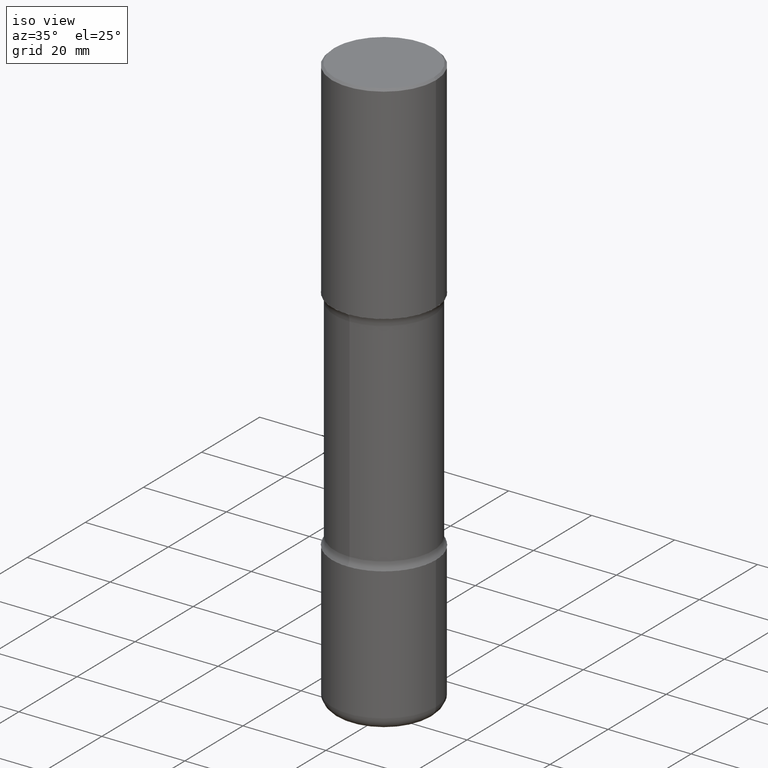
[diagram: clean part render]
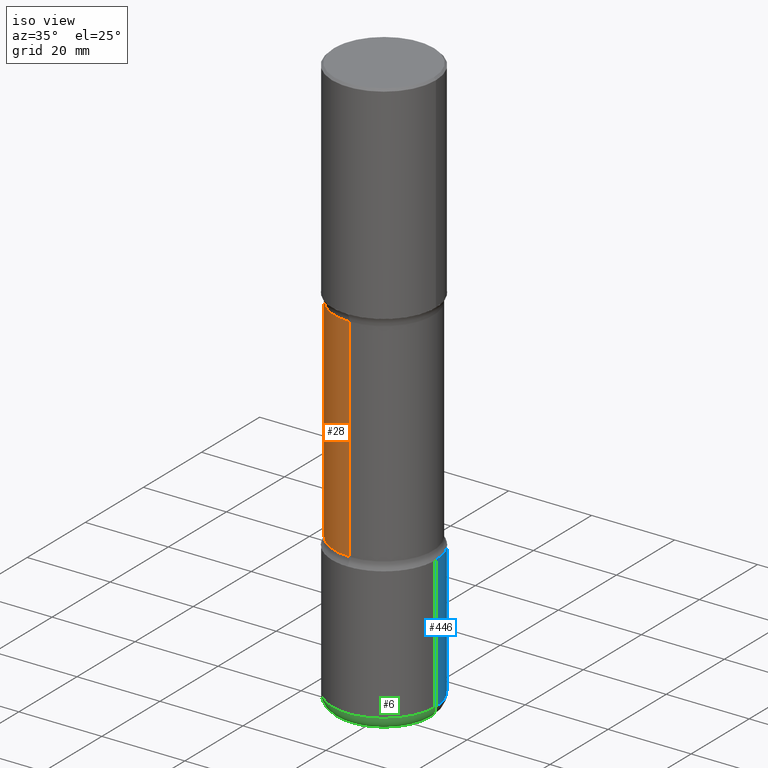
[diagram: same view with three faces highlighted in distinct colors, each labeled with its STEP entity id]
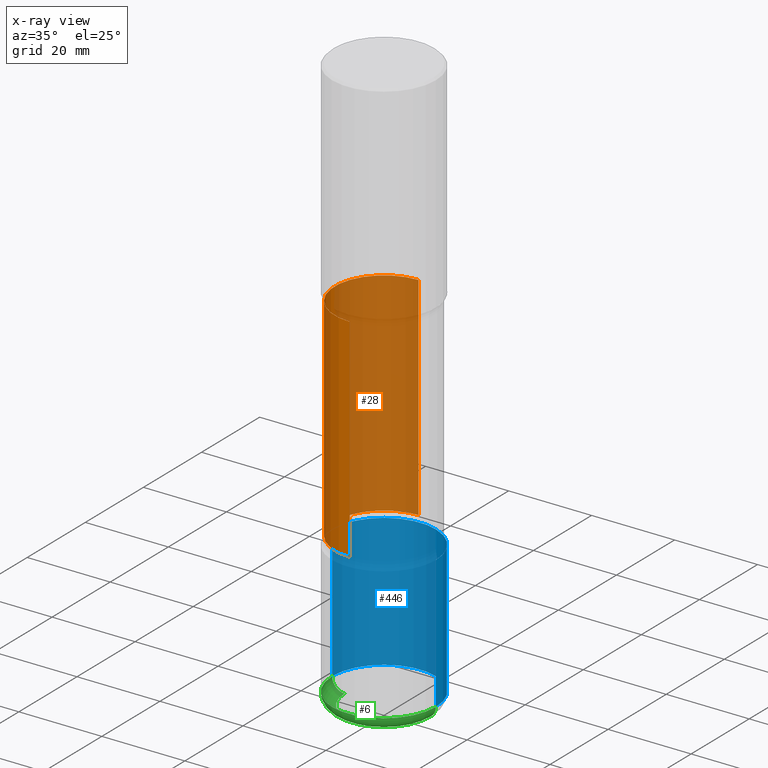
[diagram: x-ray of the same camera — body ghosted, the three highlighted faces saturated]
A machine part, iso view with three faces highlighted in distinct colors.
The next image is the same camera in x-ray (body ghosted, the three faces saturated) — at least one of them is partly hidden behind the body in this view.
Their STEP definitions:

[orange] entity #28 — the highlighted cylindrical surface (partial cylindrical patch) has radius 11.8745 mm, axis along (0, -0, -1).
#13 = VERTEX_POINT ( 'NONE', #139 ) ;
#14 = VERTEX_POINT ( 'NONE', #23 ) ;
#23 = CARTESIAN_POINT ( 'NONE',  ( 3.264535051818429005E-15, 0.4674999999999858713, -4.059268949423747941 ) ) ;
#28 = ADVANCED_FACE ( 'NONE', ( #76 ), #201, .T. ) ;
#33 = CARTESIAN_POINT ( 'NONE',  ( 1.357431692883558381E-28, -1.910775444375243513E-14, -5.511800000000000033 ) ) ;
#44 = EDGE_CURVE ( 'NONE', #13, #14, #221, .T. ) ;
#51 = AXIS2_PLACEMENT_3D ( 'NONE', #347, #267, #190 ) ;
#64 = ORIENTED_EDGE ( 'NONE', *, *, #527, .T. ) ;
#72 = AXIS2_PLACEMENT_3D ( 'NONE', #275, #365, #232 ) ;
#76 = FACE_OUTER_BOUND ( 'NONE', #223, .T. ) ;
#97 = CIRCLE ( 'NONE', #51, 0.4675000000000001377 ) ;
#107 = DIRECTION ( 'NONE',  ( 2.514686486086695194E-29, -3.392357681598433935E-15, -1.000000000000000000 ) ) ;
#139 = CARTESIAN_POINT ( 'NONE',  ( -3.291838451780625261E-15, -0.4675000000000142930, -4.059268949423745276 ) ) ;
#148 = LINE ( 'NONE', #310, #449 ) ;
#158 = DIRECTION ( 'NONE',  ( 6.982962677686265922E-15, 1.000000000000000000, -2.337410048054984002E-15 ) ) ;
#169 = LINE ( 'NONE', #333, #237 ) ;
#190 = DIRECTION ( 'NONE',  ( 6.982962677686265922E-15, 1.000000000000000000, -3.506115072082476004E-15 ) ) ;
#201 = CYLINDRICAL_SURFACE ( 'NONE', #387, 0.4675000000000001377 ) ;
#221 = CIRCLE ( 'NONE', #72, 0.4675000000000000822 ) ;
#223 = EDGE_LOOP ( 'NONE', ( #455, #64, #450, #314 ) ) ;
#232 = DIRECTION ( 'NONE',  ( 6.982962677686265922E-15, 1.000000000000000000, -3.506115072082476398E-15 ) ) ;
#237 = VECTOR ( 'NONE', #107, 39.37007874015748143 ) ;
#257 = CARTESIAN_POINT ( 'NONE',  ( 3.264535051818378912E-15, 0.4674999999999928102, -2.043031050576254337 ) ) ;
#267 = DIRECTION ( 'NONE',  ( 2.514686486086695474E-29, -3.392357681598433540E-15, -1.000000000000000000 ) ) ;
#275 = CARTESIAN_POINT ( 'NONE',  ( 9.921656725330168688E-29, -1.418024957656984198E-14, -4.059268949423747053 ) ) ;
#282 = DIRECTION ( 'NONE',  ( 2.514686486086695474E-29, -3.392357681598433540E-15, -1.000000000000000000 ) ) ;
#289 = EDGE_CURVE ( 'NONE', #358, #14, #169, .T. ) ;
#298 = CARTESIAN_POINT ( 'NONE',  ( -3.291838451780680876E-15, -0.4675000000000075207, -2.043031050576251229 ) ) ;
#310 = CARTESIAN_POINT ( 'NONE',  ( -3.207282813958055763E-15, -0.4675000000000192335, -5.511799999999999145 ) ) ;
#314 = ORIENTED_EDGE ( 'NONE', *, *, #44, .F. ) ;
#333 = CARTESIAN_POINT ( 'NONE',  ( 3.264535051818466476E-15, 0.4674999999999809863, -5.511800000000000921 ) ) ;
#347 = CARTESIAN_POINT ( 'NONE',  ( 4.851450528362542528E-29, -7.340449452484660690E-15, -2.043031050576253005 ) ) ;
#358 = VERTEX_POINT ( 'NONE', #257 ) ;
#365 = DIRECTION ( 'NONE',  ( 2.514686486086695474E-29, -3.392357681598433540E-15, -1.000000000000000000 ) ) ;
#387 = AXIS2_PLACEMENT_3D ( 'NONE', #33, #282, #158 ) ;
#398 = DIRECTION ( 'NONE',  ( 2.514686486086695194E-29, -3.392357681598433935E-15, -1.000000000000000000 ) ) ;
#415 = EDGE_CURVE ( 'NONE', #443, #13, #148, .T. ) ;
#443 = VERTEX_POINT ( 'NONE', #298 ) ;
#449 = VECTOR ( 'NONE', #398, 39.37007874015748143 ) ;
#450 = ORIENTED_EDGE ( 'NONE', *, *, #289, .T. ) ;
#455 = ORIENTED_EDGE ( 'NONE', *, *, #415, .F. ) ;
#527 = EDGE_CURVE ( 'NONE', #443, #358, #97, .T. ) ;

[blue] entity #446 — the highlighted cylindrical surface (partial cylindrical patch) has radius 12.5006 mm, axis along (-0, 0, 1).
#4 = ORIENTED_EDGE ( 'NONE', *, *, #292, .T. ) ;
#16 = ORIENTED_EDGE ( 'NONE', *, *, #380, .T. ) ;
#17 = EDGE_CURVE ( 'NONE', #543, #149, #352, .T. ) ;
#27 = CARTESIAN_POINT ( 'NONE',  ( 1.319012509992077146E-28, -1.883200289731827623E-14, -5.393699999999999939 ) ) ;
#29 = DIRECTION ( 'NONE',  ( 1.000000000000000000, -6.982962677686265922E-15, 4.876176775795935793E-29 ) ) ;
#54 = CARTESIAN_POINT ( 'NONE',  ( 0.4921500000000000874, -2.226866797914157358E-14, -5.393699999999999939 ) ) ;
#58 = FACE_OUTER_BOUND ( 'NONE', #150, .T. ) ;
#85 = DIRECTION ( 'NONE',  ( -2.445468806185136877E-29, 3.491481338843145188E-15, 1.000000000000000000 ) ) ;
#106 = CARTESIAN_POINT ( 'NONE',  ( 0.4921500000000000874, -3.436665081823296565E-15, 2.399810400207970163E-29 ) ) ;
#110 = CARTESIAN_POINT ( 'NONE',  ( 0.000000000000000000, 0.000000000000000000, 0.000000000000000000 ) ) ;
#134 = CIRCLE ( 'NONE', #452, 0.4921500000000001984 ) ;
#141 = DIRECTION ( 'NONE',  ( -2.445468806185136597E-29, 3.491481338843145583E-15, 1.000000000000000000 ) ) ;
#149 = VERTEX_POINT ( 'NONE', #464 ) ;
#150 = EDGE_LOOP ( 'NONE', ( #4, #16, #336, #212 ) ) ;
#168 = VECTOR ( 'NONE', #396, 39.37007874015748143 ) ;
#212 = ORIENTED_EDGE ( 'NONE', *, *, #17, .F. ) ;
#233 = EDGE_CURVE ( 'NONE', #149, #447, #134, .T. ) ;
#256 = VERTEX_POINT ( 'NONE', #556 ) ;
#261 = AXIS2_PLACEMENT_3D ( 'NONE', #110, #272, #29 ) ;
#265 = LINE ( 'NONE', #483, #168 ) ;
#272 = DIRECTION ( 'NONE',  ( -2.445468806185136597E-29, 3.491481338843145583E-15, 1.000000000000000000 ) ) ;
#292 = EDGE_CURVE ( 'NONE', #543, #256, #560, .T. ) ;
#301 = DIRECTION ( 'NONE',  ( 1.000000000000000000, -6.982962677686264344E-15, 0.000000000000000000 ) ) ;
#331 = DIRECTION ( 'NONE',  ( 1.000000000000000000, -6.982962677686267499E-15, 0.000000000000000000 ) ) ;
#336 = ORIENTED_EDGE ( 'NONE', *, *, #233, .F. ) ;
#352 = LINE ( 'NONE', #106, #478 ) ;
#380 = EDGE_CURVE ( 'NONE', #256, #447, #265, .T. ) ;
#396 = DIRECTION ( 'NONE',  ( -2.445468806185136877E-29, 3.491481338843145188E-15, 1.000000000000000000 ) ) ;
#419 = CARTESIAN_POINT ( 'NONE',  ( 1.010907895100811684E-28, -1.443308555850979562E-14, -4.133799999999999919 ) ) ;
#446 = ADVANCED_FACE ( 'NONE', ( #58 ), #498, .T. ) ;
#447 = VERTEX_POINT ( 'NONE', #456 ) ;
#452 = AXIS2_PLACEMENT_3D ( 'NONE', #419, #518, #331 ) ;
#456 = CARTESIAN_POINT ( 'NONE',  ( -0.4921500000000002539, -1.313560815387070066E-14, -4.133799999999999919 ) ) ;
#464 = CARTESIAN_POINT ( 'NONE',  ( 0.4921500000000001984, -1.786975064033309297E-14, -4.133799999999999919 ) ) ;
#477 = AXIS2_PLACEMENT_3D ( 'NONE', #27, #141, #301 ) ;
#478 = VECTOR ( 'NONE', #85, 39.37007874015748143 ) ;
#483 = CARTESIAN_POINT ( 'NONE',  ( -0.4921500000000000874, 3.496936074043333686E-15, -2.420853904668952350E-29 ) ) ;
#498 = CYLINDRICAL_SURFACE ( 'NONE', #261, 0.4921500000000000874 ) ;
#518 = DIRECTION ( 'NONE',  ( -2.445468806185136597E-29, 3.491481338843145583E-15, 1.000000000000000000 ) ) ;
#543 = VERTEX_POINT ( 'NONE', #54 ) ;
#556 = CARTESIAN_POINT ( 'NONE',  ( -0.4921500000000000874, -1.533506682327494254E-14, -5.393699999999999939 ) ) ;
#560 = CIRCLE ( 'NONE', #477, 0.4921500000000000874 ) ;

[green] entity #6 — the highlighted toroidal blend (fillet) surface has major radius 9.5009 mm and minor (blend) radius 2.9997 mm.
#6 = ADVANCED_FACE ( 'NONE', ( #225 ), #288, .T. ) ;
#15 = DIRECTION ( 'NONE',  ( -1.000000000000000000, 7.105427357601006592E-15, 0.000000000000000000 ) ) ;
#20 = CARTESIAN_POINT ( 'NONE',  ( -0.3740500000000000491, -1.596081428179996673E-14, -5.511800000000000033 ) ) ;
#38 = CARTESIAN_POINT ( 'NONE',  ( 1.347893496593123646E-28, -1.924434684343564878E-14, -5.511800000000000033 ) ) ;
#54 = CARTESIAN_POINT ( 'NONE',  ( 0.4921500000000000874, -2.226866797914157358E-14, -5.393699999999999939 ) ) ;
#60 = EDGE_CURVE ( 'NONE', #390, #388, #538, .T. ) ;
#66 = EDGE_LOOP ( 'NONE', ( #542, #379, #433, #192 ) ) ;
#100 = DIRECTION ( 'NONE',  ( -2.445468806185136597E-29, 3.491481338843145583E-15, 1.000000000000000000 ) ) ;
#121 = DIRECTION ( 'NONE',  ( -6.982962677686266711E-15, -1.000000000000000000, 3.491481338843145583E-15 ) ) ;
#186 = DIRECTION ( 'NONE',  ( 1.000000000000000000, -6.982962677686264344E-15, 4.883557194083111780E-29 ) ) ;
#189 = CIRCLE ( 'NONE', #507, 0.1180999999999999689 ) ;
#192 = ORIENTED_EDGE ( 'NONE', *, *, #475, .F. ) ;
#196 = EDGE_CURVE ( 'NONE', #388, #543, #324, .T. ) ;
#207 = CARTESIAN_POINT ( 'NONE',  ( 1.319012509992077146E-28, -1.883200289731827623E-14, -5.393699999999999939 ) ) ;
#216 = CARTESIAN_POINT ( 'NONE',  ( -0.3740500000000001601, -1.617421779420761837E-14, -5.393699999999999939 ) ) ;
#225 = FACE_OUTER_BOUND ( 'NONE', #66, .T. ) ;
#250 = AXIS2_PLACEMENT_3D ( 'NONE', #207, #328, #422 ) ;
#256 = VERTEX_POINT ( 'NONE', #556 ) ;
#273 = DIRECTION ( 'NONE',  ( 1.000000000000000000, -6.982962677686263555E-15, 0.000000000000000000 ) ) ;
#288 = TOROIDAL_SURFACE ( 'NONE', #375, 0.3740500000000001601, 0.1180999999999999966 ) ;
#299 = CARTESIAN_POINT ( 'NONE',  ( 1.319012509992077146E-28, -1.883200289731827623E-14, -5.393699999999999939 ) ) ;
#324 = CIRCLE ( 'NONE', #362, 0.1180999999999999689 ) ;
#326 = DIRECTION ( 'NONE',  ( -2.445468806185136597E-29, 3.491481338843145583E-15, 1.000000000000000000 ) ) ;
#328 = DIRECTION ( 'NONE',  ( -2.445468806185136597E-29, 3.491481338843145583E-15, 1.000000000000000000 ) ) ;
#362 = AXIS2_PLACEMENT_3D ( 'NONE', #423, #121, #373 ) ;
#373 = DIRECTION ( 'NONE',  ( 1.000000000000000000, -6.982962677686274599E-15, 0.000000000000000000 ) ) ;
#374 = CIRCLE ( 'NONE', #250, 0.4921500000000000874 ) ;
#375 = AXIS2_PLACEMENT_3D ( 'NONE', #299, #100, #186 ) ;
#379 = ORIENTED_EDGE ( 'NONE', *, *, #60, .T. ) ;
#388 = VERTEX_POINT ( 'NONE', #444 ) ;
#390 = VERTEX_POINT ( 'NONE', #20 ) ;
#422 = DIRECTION ( 'NONE',  ( 1.000000000000000000, -6.982962677686264344E-15, 0.000000000000000000 ) ) ;
#423 = CARTESIAN_POINT ( 'NONE',  ( 0.3740500000000001601, -2.144398008690682532E-14, -5.393699999999999939 ) ) ;
#433 = ORIENTED_EDGE ( 'NONE', *, *, #196, .T. ) ;
#444 = CARTESIAN_POINT ( 'NONE',  ( 0.3740500000000000491, -2.185632403302419787E-14, -5.511800000000000033 ) ) ;
#461 = AXIS2_PLACEMENT_3D ( 'NONE', #38, #326, #273 ) ;
#475 = EDGE_CURVE ( 'NONE', #256, #543, #374, .T. ) ;
#507 = AXIS2_PLACEMENT_3D ( 'NONE', #216, #533, #15 ) ;
#533 = DIRECTION ( 'NONE',  ( 7.105427357601001859E-15, 1.000000000000000000, -3.491481338843145583E-15 ) ) ;
#538 = CIRCLE ( 'NONE', #461, 0.3740500000000000491 ) ;
#542 = ORIENTED_EDGE ( 'NONE', *, *, #544, .F. ) ;
#543 = VERTEX_POINT ( 'NONE', #54 ) ;
#544 = EDGE_CURVE ( 'NONE', #390, #256, #189, .T. ) ;
#556 = CARTESIAN_POINT ( 'NONE',  ( -0.4921500000000000874, -1.533506682327494254E-14, -5.393699999999999939 ) ) ;